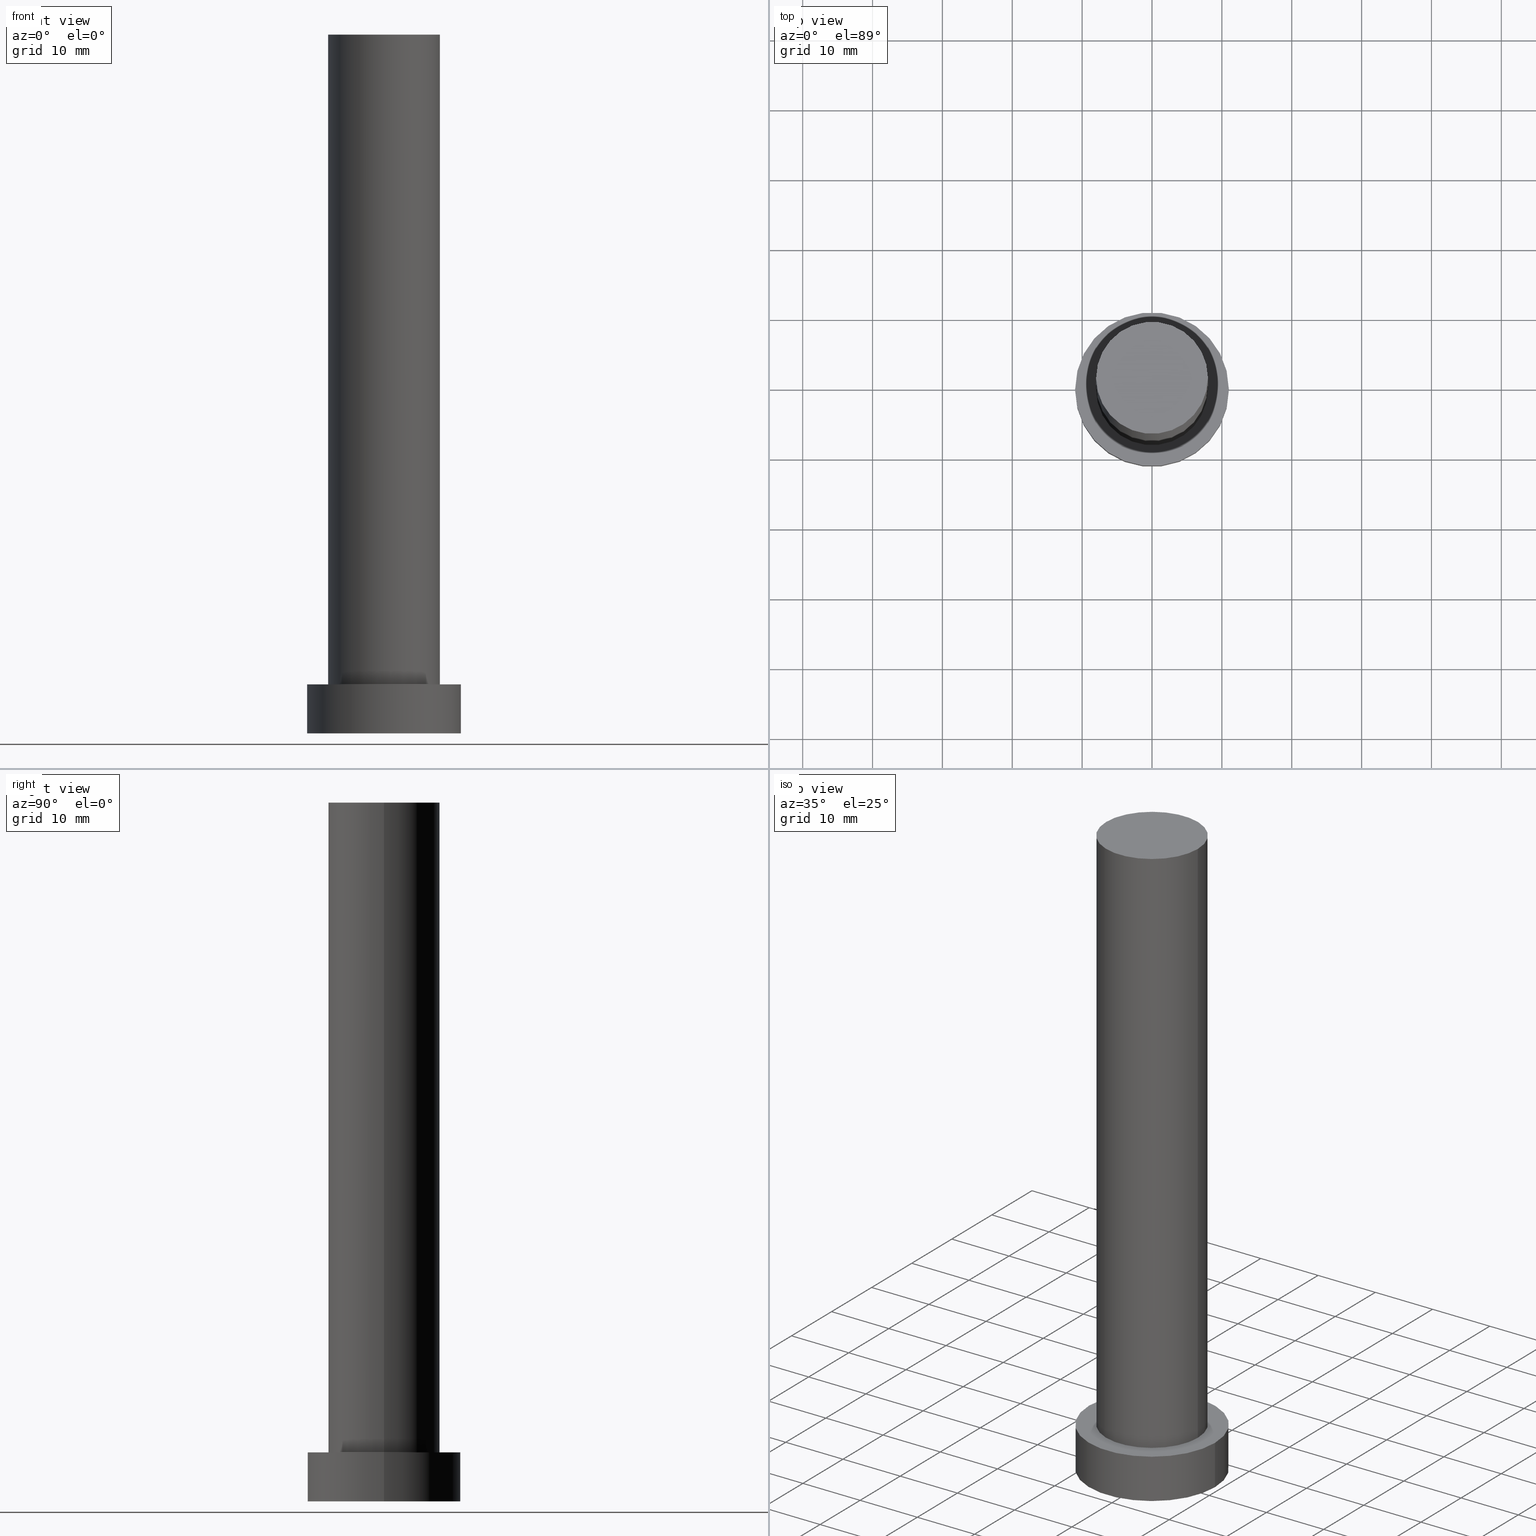
[diagram: canonical four-view strip — front | top / right | iso, engineering-drawing reading convention]
A machine part, canonical four-view strip (front | top / right | iso — engineering-drawing reading convention). The complete STEP part file that produces these views, byte-faithful:
ISO-10303-21;
HEADER;
FILE_DESCRIPTION (( 'STEP AP203' ),
    '1' );
FILE_NAME ('11c6.STEP',
    '2023-02-13T08:53:34',
    ( '' ),
    ( '' ),
    'SwSTEP 2.0',
    'SolidWorks 2019',
    '' );
FILE_SCHEMA (( 'CONFIG_CONTROL_DESIGN' ));
ENDSEC;

DATA;
#1 = PERSON_AND_ORGANIZATION ( #196, #24 ) ;
#2 = PRODUCT_RELATED_PRODUCT_CATEGORY ( 'detail', '', ( #20 ) ) ;
#3 = AXIS2_PLACEMENT_3D ( 'NONE', #68, #217, #45 ) ;
#4 = FACE_OUTER_BOUND ( 'NONE', #70, .T. ) ;
#5 = AXIS2_PLACEMENT_3D ( 'NONE', #115, #57, #21 ) ;
#6 = VERTEX_POINT ( 'NONE', #197 ) ;
#7 = ORIENTED_EDGE ( 'NONE', *, *, #250, .F. ) ;
#8 = EDGE_LOOP ( 'NONE', ( #91, #89, #141, #10 ) ) ;
#9 = PRODUCT_DEFINITION ( 'NEZN�M�', '', #108, #151 ) ;
#10 = ORIENTED_EDGE ( 'NONE', *, *, #92, .F. ) ;
#11 = APPROVAL_DATE_TIME ( #174, #50 ) ;
#12 = CARTESIAN_POINT ( 'NONE',  ( 0.000000000000000000, 0.000000000000000000, 7.000000000000000000 ) ) ;
#13 = PERSON_AND_ORGANIZATION ( #196, #24 ) ;
#14 = CARTESIAN_POINT ( 'NONE',  ( 0.000000000000000000, 0.000000000000000000, 100.0000000000000000 ) ) ;
#15 = AXIS2_PLACEMENT_3D ( 'NONE', #146, #184, #98 ) ;
#16 = APPLICATION_PROTOCOL_DEFINITION ( 'international standard', 'config_control_design', 1994, #60 ) ;
#17 = EDGE_CURVE ( 'NONE', #177, #220, #191, .T. ) ;
#18 = LOCAL_TIME ( 9, 53, 34.00000000000000000, #32 ) ;
#19 = FACE_OUTER_BOUND ( 'NONE', #8, .T. ) ;
#20 = PRODUCT ( '11c6', '11c6', '', ( #95 ) ) ;
#21 = DIRECTION ( 'NONE',  ( -1.000000000000000000, 0.000000000000000000, 0.000000000000000000 ) ) ;
#22 = DIRECTION ( 'NONE',  ( -0.000000000000000000, -0.000000000000000000, -1.000000000000000000 ) ) ;
#23 = LINE ( 'NONE', #132, #38 ) ;
#24 = ORGANIZATION ( 'NEUR�EN�', 'NEUR�EN�', '' ) ;
#25 = ORIENTED_EDGE ( 'NONE', *, *, #85, .T. ) ;
#26 = ADVANCED_FACE ( 'NONE', ( #126, #4 ), #237, .T. ) ;
#27 = EDGE_LOOP ( 'NONE', ( #25, #240 ) ) ;
#28 = PERSON_AND_ORGANIZATION ( #196, #24 ) ;
#29 = AXIS2_PLACEMENT_3D ( 'NONE', #31, #22, #150 ) ;
#30 = ORIENTED_EDGE ( 'NONE', *, *, #17, .F. ) ;
#31 = CARTESIAN_POINT ( 'NONE',  ( 0.000000000000000000, 0.000000000000000000, 7.000000000000000000 ) ) ;
#32 = COORDINATED_UNIVERSAL_TIME_OFFSET ( 1, 0, .AHEAD. ) ;
#33 = APPLICATION_PROTOCOL_DEFINITION ( 'international standard', 'config_control_design', 1994, #67 ) ;
#34 = FACE_OUTER_BOUND ( 'NONE', #178, .T. ) ;
#35 = PRODUCT_DEFINITION_SHAPE ( 'NONE', 'NONE',  #9 ) ;
#36 =( NAMED_UNIT ( * ) SI_UNIT ( $, .STERADIAN. ) SOLID_ANGLE_UNIT ( ) );
#37 = CARTESIAN_POINT ( 'NONE',  ( -11.00000000000000000, 0.000000000000000000, 0.000000000000000000 ) ) ;
#38 = VECTOR ( 'NONE', #212, 1000.000000000000000 ) ;
#39 = CARTESIAN_POINT ( 'NONE',  ( 11.00000000000000000, 1.347111479062088405E-15, 7.000000000000000000 ) ) ;
#40 = DIRECTION ( 'NONE',  ( 1.000000000000000000, 0.000000000000000000, -0.000000000000000000 ) ) ;
#41 = APPROVAL ( #232, 'NEUR�EN�' ) ;
#42 = CARTESIAN_POINT ( 'NONE',  ( 8.000000000000000000, 9.797174393178823685E-16, 100.0000000000000000 ) ) ;
#43 = COORDINATED_UNIVERSAL_TIME_OFFSET ( 1, 0, .AHEAD. ) ;
#44 = ADVANCED_FACE ( 'NONE', ( #34 ), #129, .T. ) ;
#45 = DIRECTION ( 'NONE',  ( 1.000000000000000000, 0.000000000000000000, -0.000000000000000000 ) ) ;
#46 = ORIENTED_EDGE ( 'NONE', *, *, #157, .T. ) ;
#47 = LOCAL_TIME ( 9, 53, 34.00000000000000000, #83 ) ;
#48 = ORIENTED_EDGE ( 'NONE', *, *, #255, .F. ) ;
#49 = CC_DESIGN_PERSON_AND_ORGANIZATION_ASSIGNMENT ( #1, #84, ( #108 ) ) ;
#50 = APPROVAL ( #242, 'NEUR�EN�' ) ;
#51 = DIRECTION ( 'NONE',  ( 1.000000000000000000, 0.000000000000000000, 0.000000000000000000 ) ) ;
#52 =( GEOMETRIC_REPRESENTATION_CONTEXT ( 3 ) GLOBAL_UNCERTAINTY_ASSIGNED_CONTEXT ( ( #190 ) ) GLOBAL_UNIT_ASSIGNED_CONTEXT ( ( #109, #181, #36 ) ) REPRESENTATION_CONTEXT ( 'NONE', 'WORKASPACE' ) );
#53 = APPROVAL_DATE_TIME ( #78, #97 ) ;
#54 = DIRECTION ( 'NONE',  ( 0.000000000000000000, 0.000000000000000000, 1.000000000000000000 ) ) ;
#55 = PERSON_AND_ORGANIZATION_ROLE ( 'creator' ) ;
#56 = FACE_OUTER_BOUND ( 'NONE', #121, .T. ) ;
#57 = DIRECTION ( 'NONE',  ( -0.000000000000000000, -0.000000000000000000, -1.000000000000000000 ) ) ;
#58 = EDGE_CURVE ( 'NONE', #119, #199, #165, .T. ) ;
#59 = FACE_OUTER_BOUND ( 'NONE', #137, .T. ) ;
#60 = APPLICATION_CONTEXT ( 'configuration controlled 3d designs of mechanical parts and assemblies' ) ;
#61 = APPROVAL_DATE_TIME ( #144, #41 ) ;
#62 = DIRECTION ( 'NONE',  ( -0.000000000000000000, -0.000000000000000000, -1.000000000000000000 ) ) ;
#63 = AXIS2_PLACEMENT_3D ( 'NONE', #112, #148, #243 ) ;
#64 = AXIS2_PLACEMENT_3D ( 'NONE', #224, #54, #40 ) ;
#65 = CIRCLE ( 'NONE', #120, 8.000000000000000000 ) ;
#66 = VECTOR ( 'NONE', #62, 1000.000000000000000 ) ;
#67 = APPLICATION_CONTEXT ( 'configuration controlled 3d designs of mechanical parts and assemblies' ) ;
#68 = CARTESIAN_POINT ( 'NONE',  ( 0.000000000000000000, 0.000000000000000000, 7.000000000000000000 ) ) ;
#69 = ORIENTED_EDGE ( 'NONE', *, *, #250, .T. ) ;
#70 = EDGE_LOOP ( 'NONE', ( #136, #123 ) ) ;
#71 = LOCAL_TIME ( 9, 53, 34.00000000000000000, #43 ) ;
#72 = ORIENTED_EDGE ( 'NONE', *, *, #201, .T. ) ;
#73 = VERTEX_POINT ( 'NONE', #39 ) ;
#74 = DATE_TIME_ROLE ( 'classification_date' ) ;
#75 = CARTESIAN_POINT ( 'NONE',  ( 11.00000000000000000, 1.347111479062088405E-15, 7.000000000000000000 ) ) ;
#76 = AXIS2_PLACEMENT_3D ( 'NONE', #189, #171, #207 ) ;
#77 = APPROVAL_ROLE ( '' ) ;
#78 = DATE_AND_TIME ( #100, #114 ) ;
#79 = DIRECTION ( 'NONE',  ( -1.000000000000000000, 0.000000000000000000, 0.000000000000000000 ) ) ;
#80 = FACE_OUTER_BOUND ( 'NONE', #27, .T. ) ;
#81 = DIRECTION ( 'NONE',  ( 0.000000000000000000, 0.000000000000000000, 1.000000000000000000 ) ) ;
#82 = CYLINDRICAL_SURFACE ( 'NONE', #29, 11.00000000000000000 ) ;
#83 = COORDINATED_UNIVERSAL_TIME_OFFSET ( 1, 0, .AHEAD. ) ;
#84 = PERSON_AND_ORGANIZATION_ROLE ( 'creator' ) ;
#85 = EDGE_CURVE ( 'NONE', #220, #177, #179, .T. ) ;
#86 = AXIS2_PLACEMENT_3D ( 'NONE', #219, #221, #51 ) ;
#87 = AXIS2_PLACEMENT_3D ( 'NONE', #12, #93, #162 ) ;
#88 = ADVANCED_BREP_SHAPE_REPRESENTATION ( '11c6', ( #195, #236 ), #52 ) ;
#89 = ORIENTED_EDGE ( 'NONE', *, *, #214, .T. ) ;
#90 = COORDINATED_UNIVERSAL_TIME_OFFSET ( 1, 0, .AHEAD. ) ;
#91 = ORIENTED_EDGE ( 'NONE', *, *, #231, .F. ) ;
#92 = EDGE_CURVE ( 'NONE', #6, #199, #113, .T. ) ;
#93 = DIRECTION ( 'NONE',  ( 0.000000000000000000, 0.000000000000000000, 1.000000000000000000 ) ) ;
#94 = DIRECTION ( 'NONE',  ( 0.000000000000000000, 0.000000000000000000, 1.000000000000000000 ) ) ;
#95 = MECHANICAL_CONTEXT ( 'NONE', #60, 'mechanical' ) ;
#96 = DIRECTION ( 'NONE',  ( 0.000000000000000000, 0.000000000000000000, 1.000000000000000000 ) ) ;
#97 = APPROVAL ( #254, 'NEUR�EN�' ) ;
#98 = DIRECTION ( 'NONE',  ( -1.000000000000000000, 0.000000000000000000, 0.000000000000000000 ) ) ;
#99 = DIRECTION ( 'NONE',  ( 1.000000000000000000, 0.000000000000000000, 0.000000000000000000 ) ) ;
#100 = CALENDAR_DATE ( 2023, 13, 2 ) ;
#101 = ORIENTED_EDGE ( 'NONE', *, *, #201, .F. ) ;
#102 = ADVANCED_FACE ( 'NONE', ( #19 ), #82, .T. ) ;
#103 = ORIENTED_EDGE ( 'NONE', *, *, #163, .F. ) ;
#104 = ORIENTED_EDGE ( 'NONE', *, *, #85, .F. ) ;
#105 = AXIS2_PLACEMENT_3D ( 'NONE', #14, #94, #99 ) ;
#106 = PERSON_AND_ORGANIZATION_ROLE ( 'classification_officer' ) ;
#107 = EDGE_LOOP ( 'NONE', ( #176, #101 ) ) ;
#108 = PRODUCT_DEFINITION_FORMATION_WITH_SPECIFIED_SOURCE ( 'LIBOVOLN�', '', #20, .NOT_KNOWN. ) ;
#109 =( LENGTH_UNIT ( ) NAMED_UNIT ( * ) SI_UNIT ( .MILLI., .METRE. ) );
#110 = PLANE ( 'NONE',  #64 ) ;
#111 = PERSON_AND_ORGANIZATION ( #196, #24 ) ;
#112 = CARTESIAN_POINT ( 'NONE',  ( 0.000000000000000000, 0.000000000000000000, 0.000000000000000000 ) ) ;
#113 = LINE ( 'NONE', #205, #251 ) ;
#114 = LOCAL_TIME ( 9, 53, 34.00000000000000000, #183 ) ;
#115 = CARTESIAN_POINT ( 'NONE',  ( 0.000000000000000000, 0.000000000000000000, 100.0000000000000000 ) ) ;
#116 = CARTESIAN_POINT ( 'NONE',  ( 8.000000000000000000, 9.797174393178823685E-16, 7.000000000000000000 ) ) ;
#117 = LINE ( 'NONE', #42, #135 ) ;
#118 = CIRCLE ( 'NONE', #210, 11.00000000000000000 ) ;
#119 = VERTEX_POINT ( 'NONE', #229 ) ;
#120 = AXIS2_PLACEMENT_3D ( 'NONE', #131, #182, #211 ) ;
#121 = EDGE_LOOP ( 'NONE', ( #103, #200 ) ) ;
#122 = LOCAL_TIME ( 9, 53, 34.00000000000000000, #90 ) ;
#123 = ORIENTED_EDGE ( 'NONE', *, *, #231, .T. ) ;
#124 = PERSON_AND_ORGANIZATION_ROLE ( 'design_supplier' ) ;
#125 = ORIENTED_EDGE ( 'NONE', *, *, #163, .T. ) ;
#126 = FACE_BOUND ( 'NONE', #107, .T. ) ;
#127 = PLANE ( 'NONE',  #76 ) ;
#128 = CARTESIAN_POINT ( 'NONE',  ( 0.000000000000000000, 0.000000000000000000, 0.000000000000000000 ) ) ;
#129 = CYLINDRICAL_SURFACE ( 'NONE', #15, 11.00000000000000000 ) ;
#130 = DIRECTION ( 'NONE',  ( -0.000000000000000000, -0.000000000000000000, -1.000000000000000000 ) ) ;
#131 = CARTESIAN_POINT ( 'NONE',  ( 0.000000000000000000, 0.000000000000000000, 7.000000000000000000 ) ) ;
#132 = CARTESIAN_POINT ( 'NONE',  ( -8.000000000000000000, 0.000000000000000000, 100.0000000000000000 ) ) ;
#133 = DATE_TIME_ROLE ( 'creation_date' ) ;
#134 = SECURITY_CLASSIFICATION ( '', '', #202 ) ;
#135 = VECTOR ( 'NONE', #192, 1000.000000000000000 ) ;
#136 = ORIENTED_EDGE ( 'NONE', *, *, #216, .T. ) ;
#137 = EDGE_LOOP ( 'NONE', ( #7, #104, #218, #46 ) ) ;
#138 = VERTEX_POINT ( 'NONE', #116 ) ;
#139 = CC_DESIGN_PERSON_AND_ORGANIZATION_ASSIGNMENT ( #152, #124, ( #108 ) ) ;
#140 = DATE_AND_TIME ( #159, #122 ) ;
#141 = ORIENTED_EDGE ( 'NONE', *, *, #58, .T. ) ;
#142 = CARTESIAN_POINT ( 'NONE',  ( -8.000000000000000000, 0.000000000000000000, 7.000000000000000000 ) ) ;
#143 = APPROVAL_PERSON_ORGANIZATION ( #222, #41, #77 ) ;
#144 = DATE_AND_TIME ( #187, #18 ) ;
#145 = DIRECTION ( 'NONE',  ( 0.000000000000000000, 0.000000000000000000, 1.000000000000000000 ) ) ;
#146 = CARTESIAN_POINT ( 'NONE',  ( 0.000000000000000000, 0.000000000000000000, 7.000000000000000000 ) ) ;
#147 = CLOSED_SHELL ( 'NONE', ( #241, #102, #44, #26, #166, #153, #149 ) ) ;
#148 = DIRECTION ( 'NONE',  ( 0.000000000000000000, 0.000000000000000000, 1.000000000000000000 ) ) ;
#149 = ADVANCED_FACE ( 'NONE', ( #80 ), #110, .T. ) ;
#150 = DIRECTION ( 'NONE',  ( -1.000000000000000000, 0.000000000000000000, 0.000000000000000000 ) ) ;
#151 = DESIGN_CONTEXT ( 'detailed design', #67, 'design' ) ;
#152 = PERSON_AND_ORGANIZATION ( #196, #24 ) ;
#153 = ADVANCED_FACE ( 'NONE', ( #59 ), #167, .T. ) ;
#154 = CC_DESIGN_APPROVAL ( #97, ( #9 ) ) ;
#155 = ORIENTED_EDGE ( 'NONE', *, *, #92, .T. ) ;
#156 = ORIENTED_EDGE ( 'NONE', *, *, #216, .F. ) ;
#157 = EDGE_CURVE ( 'NONE', #238, #138, #65, .T. ) ;
#158 = CC_DESIGN_DATE_AND_TIME_ASSIGNMENT ( #234, #133, ( #9 ) ) ;
#159 = CALENDAR_DATE ( 2023, 13, 2 ) ;
#160 = ORIENTED_EDGE ( 'NONE', *, *, #214, .F. ) ;
#161 = PERSON_AND_ORGANIZATION ( #196, #24 ) ;
#162 = DIRECTION ( 'NONE',  ( 1.000000000000000000, 0.000000000000000000, 0.000000000000000000 ) ) ;
#163 = EDGE_CURVE ( 'NONE', #199, #119, #208, .T. ) ;
#164 = CC_DESIGN_PERSON_AND_ORGANIZATION_ASSIGNMENT ( #28, #106, ( #134 ) ) ;
#165 = CIRCLE ( 'NONE', #63, 11.00000000000000000 ) ;
#166 = ADVANCED_FACE ( 'NONE', ( #56 ), #127, .F. ) ;
#167 = CYLINDRICAL_SURFACE ( 'NONE', #203, 8.000000000000000000 ) ;
#168 = SHAPE_DEFINITION_REPRESENTATION ( #35, #88 ) ;
#169 = CARTESIAN_POINT ( 'NONE',  ( 0.000000000000000000, 0.000000000000000000, 0.000000000000000000 ) ) ;
#170 = CARTESIAN_POINT ( 'NONE',  ( 0.000000000000000000, 0.000000000000000000, 100.0000000000000000 ) ) ;
#171 = DIRECTION ( 'NONE',  ( 0.000000000000000000, 0.000000000000000000, 1.000000000000000000 ) ) ;
#172 = CC_DESIGN_SECURITY_CLASSIFICATION ( #134, ( #108 ) ) ;
#173 = PERSON_AND_ORGANIZATION_ROLE ( 'design_owner' ) ;
#174 = DATE_AND_TIME ( #194, #71 ) ;
#175 = CC_DESIGN_PERSON_AND_ORGANIZATION_ASSIGNMENT ( #204, #55, ( #9 ) ) ;
#176 = ORIENTED_EDGE ( 'NONE', *, *, #157, .F. ) ;
#177 = VERTEX_POINT ( 'NONE', #252 ) ;
#178 = EDGE_LOOP ( 'NONE', ( #160, #156, #155, #125 ) ) ;
#179 = CIRCLE ( 'NONE', #105, 8.000000000000000000 ) ;
#180 = AXIS2_PLACEMENT_3D ( 'NONE', #169, #145, #226 ) ;
#181 =( NAMED_UNIT ( * ) PLANE_ANGLE_UNIT ( ) SI_UNIT ( $, .RADIAN. ) );
#182 = DIRECTION ( 'NONE',  ( 0.000000000000000000, 0.000000000000000000, 1.000000000000000000 ) ) ;
#183 = COORDINATED_UNIVERSAL_TIME_OFFSET ( 1, 0, .AHEAD. ) ;
#184 = DIRECTION ( 'NONE',  ( -0.000000000000000000, -0.000000000000000000, -1.000000000000000000 ) ) ;
#185 = DIRECTION ( 'NONE',  ( 1.000000000000000000, 0.000000000000000000, 0.000000000000000000 ) ) ;
#186 = CARTESIAN_POINT ( 'NONE',  ( 0.000000000000000000, 0.000000000000000000, 7.000000000000000000 ) ) ;
#187 = CALENDAR_DATE ( 2023, 13, 2 ) ;
#188 = DIRECTION ( 'NONE',  ( 1.000000000000000000, 0.000000000000000000, 0.000000000000000000 ) ) ;
#189 = CARTESIAN_POINT ( 'NONE',  ( 0.000000000000000000, 0.000000000000000000, 0.000000000000000000 ) ) ;
#190 = UNCERTAINTY_MEASURE_WITH_UNIT (LENGTH_MEASURE( 1.000000000000000082E-05 ), #109, 'distance_accuracy_value', 'NONE');
#191 = CIRCLE ( 'NONE', #86, 8.000000000000000000 ) ;
#192 = DIRECTION ( 'NONE',  ( -0.000000000000000000, -0.000000000000000000, -1.000000000000000000 ) ) ;
#193 = CIRCLE ( 'NONE', #87, 11.00000000000000000 ) ;
#194 = CALENDAR_DATE ( 2023, 13, 2 ) ;
#195 = MANIFOLD_SOLID_BREP ( 'P�idat vysunut�m3', #147 ) ;
#196 = PERSON ( 'NEUR�EN�', 'NEUR�EN�', 'NEUR�EN�', ('NEUR�EN�'), ('NEUR�EN�'), ('NEUR�EN�') ) ;
#197 = CARTESIAN_POINT ( 'NONE',  ( -11.00000000000000000, 0.000000000000000000, 7.000000000000000000 ) ) ;
#198 = CC_DESIGN_APPROVAL ( #41, ( #134 ) ) ;
#199 = VERTEX_POINT ( 'NONE', #37 ) ;
#200 = ORIENTED_EDGE ( 'NONE', *, *, #58, .F. ) ;
#201 = EDGE_CURVE ( 'NONE', #138, #238, #245, .T. ) ;
#202 = SECURITY_CLASSIFICATION_LEVEL ( 'unclassified' ) ;
#203 = AXIS2_PLACEMENT_3D ( 'NONE', #170, #246, #79 ) ;
#204 = PERSON_AND_ORGANIZATION ( #196, #24 ) ;
#205 = CARTESIAN_POINT ( 'NONE',  ( -11.00000000000000000, 0.000000000000000000, 7.000000000000000000 ) ) ;
#206 = CARTESIAN_POINT ( 'NONE',  ( -8.000000000000000000, 0.000000000000000000, 100.0000000000000000 ) ) ;
#207 = DIRECTION ( 'NONE',  ( 1.000000000000000000, 0.000000000000000000, -0.000000000000000000 ) ) ;
#208 = CIRCLE ( 'NONE', #180, 11.00000000000000000 ) ;
#209 = CARTESIAN_POINT ( 'NONE',  ( 0.000000000000000000, 0.000000000000000000, 7.000000000000000000 ) ) ;
#210 = AXIS2_PLACEMENT_3D ( 'NONE', #209, #81, #188 ) ;
#211 = DIRECTION ( 'NONE',  ( 1.000000000000000000, 0.000000000000000000, 0.000000000000000000 ) ) ;
#212 = DIRECTION ( 'NONE',  ( -0.000000000000000000, -0.000000000000000000, -1.000000000000000000 ) ) ;
#213 = APPROVAL_ROLE ( '' ) ;
#214 = EDGE_CURVE ( 'NONE', #73, #119, #249, .T. ) ;
#215 = APPROVAL_PERSON_ORGANIZATION ( #111, #97, #235 ) ;
#216 = EDGE_CURVE ( 'NONE', #6, #73, #118, .T. ) ;
#217 = DIRECTION ( 'NONE',  ( 0.000000000000000000, 0.000000000000000000, 1.000000000000000000 ) ) ;
#218 = ORIENTED_EDGE ( 'NONE', *, *, #255, .T. ) ;
#219 = CARTESIAN_POINT ( 'NONE',  ( 0.000000000000000000, 0.000000000000000000, 100.0000000000000000 ) ) ;
#220 = VERTEX_POINT ( 'NONE', #206 ) ;
#221 = DIRECTION ( 'NONE',  ( 0.000000000000000000, 0.000000000000000000, 1.000000000000000000 ) ) ;
#222 = PERSON_AND_ORGANIZATION ( #196, #24 ) ;
#223 = CC_DESIGN_APPROVAL ( #50, ( #108 ) ) ;
#224 = CARTESIAN_POINT ( 'NONE',  ( 0.000000000000000000, 0.000000000000000000, 100.0000000000000000 ) ) ;
#225 = CALENDAR_DATE ( 2023, 13, 2 ) ;
#226 = DIRECTION ( 'NONE',  ( 1.000000000000000000, 0.000000000000000000, 0.000000000000000000 ) ) ;
#227 = CYLINDRICAL_SURFACE ( 'NONE', #5, 8.000000000000000000 ) ;
#228 = CC_DESIGN_PERSON_AND_ORGANIZATION_ASSIGNMENT ( #13, #173, ( #20 ) ) ;
#229 = CARTESIAN_POINT ( 'NONE',  ( 11.00000000000000000, 1.347111479062088405E-15, 0.000000000000000000 ) ) ;
#230 = AXIS2_PLACEMENT_3D ( 'NONE', #186, #96, #233 ) ;
#231 = EDGE_CURVE ( 'NONE', #73, #6, #193, .T. ) ;
#232 = APPROVAL_STATUS ( 'not_yet_approved' ) ;
#233 = DIRECTION ( 'NONE',  ( 1.000000000000000000, 0.000000000000000000, 0.000000000000000000 ) ) ;
#234 = DATE_AND_TIME ( #225, #47 ) ;
#235 = APPROVAL_ROLE ( '' ) ;
#236 = AXIS2_PLACEMENT_3D ( 'NONE', #128, #244, #185 ) ;
#237 = PLANE ( 'NONE',  #3 ) ;
#238 = VERTEX_POINT ( 'NONE', #142 ) ;
#239 = EDGE_LOOP ( 'NONE', ( #30, #69, #72, #48 ) ) ;
#240 = ORIENTED_EDGE ( 'NONE', *, *, #17, .T. ) ;
#241 = ADVANCED_FACE ( 'NONE', ( #248 ), #227, .T. ) ;
#242 = APPROVAL_STATUS ( 'not_yet_approved' ) ;
#243 = DIRECTION ( 'NONE',  ( 1.000000000000000000, 0.000000000000000000, 0.000000000000000000 ) ) ;
#244 = DIRECTION ( 'NONE',  ( 0.000000000000000000, 0.000000000000000000, 1.000000000000000000 ) ) ;
#245 = CIRCLE ( 'NONE', #230, 8.000000000000000000 ) ;
#246 = DIRECTION ( 'NONE',  ( -0.000000000000000000, -0.000000000000000000, -1.000000000000000000 ) ) ;
#247 = CC_DESIGN_DATE_AND_TIME_ASSIGNMENT ( #140, #74, ( #134 ) ) ;
#248 = FACE_OUTER_BOUND ( 'NONE', #239, .T. ) ;
#249 = LINE ( 'NONE', #75, #66 ) ;
#250 = EDGE_CURVE ( 'NONE', #177, #138, #117, .T. ) ;
#251 = VECTOR ( 'NONE', #130, 1000.000000000000000 ) ;
#252 = CARTESIAN_POINT ( 'NONE',  ( 8.000000000000000000, 9.797174393178823685E-16, 100.0000000000000000 ) ) ;
#253 = APPROVAL_PERSON_ORGANIZATION ( #161, #50, #213 ) ;
#254 = APPROVAL_STATUS ( 'not_yet_approved' ) ;
#255 = EDGE_CURVE ( 'NONE', #220, #238, #23, .T. ) ;
ENDSEC;
END-ISO-10303-21;
